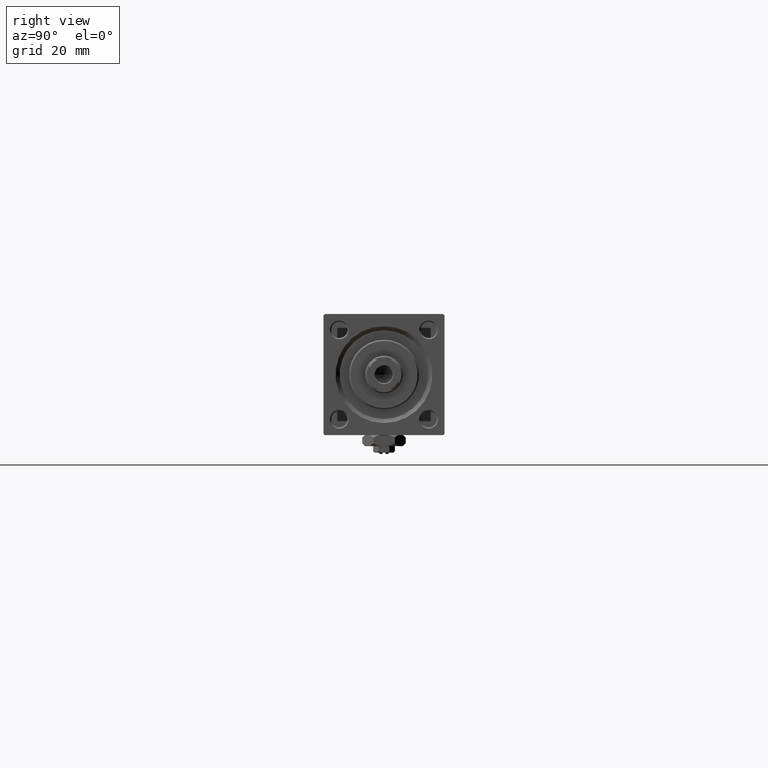
[diagram: clean part render]
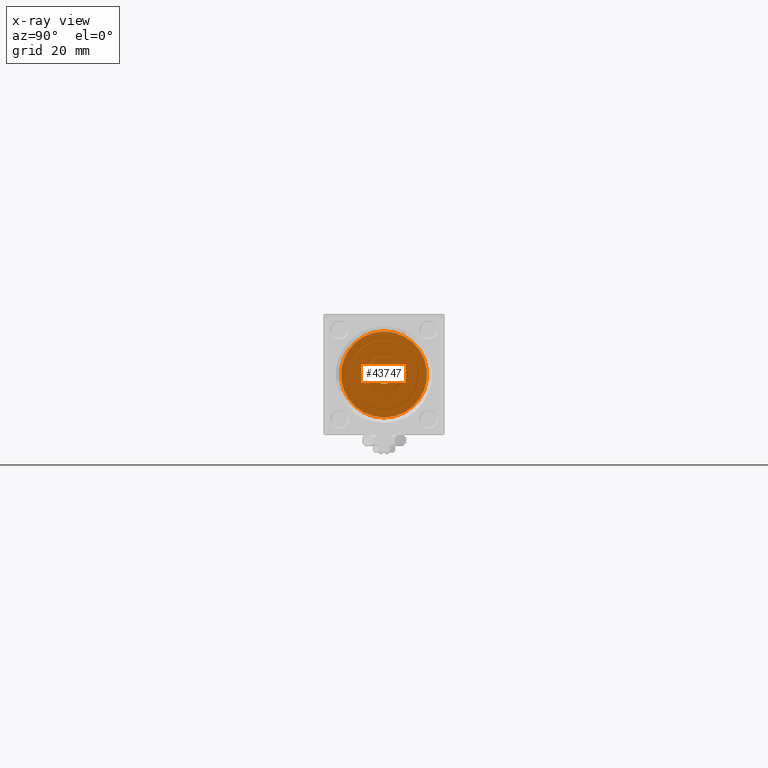
[diagram: x-ray — body ghosted, one internal face saturated and labeled with its STEP entity id]
A machine part, right view, then the same camera in x-ray: the body is ghosted and one INTERNAL B-rep face — a face not visible from any outside direction — is saturated and labeled: STEP entity #43747.
In plain terms, the highlighted planar face has unit normal (-1, 0, 0).
Its self-contained STEP definition (entity closure, byte-faithful):
#2103 = DIRECTION ( 'NONE',  ( -0.000000000000000000, 0.000000000000000000, 1.000000000000000000 ) ) ;
#2362 = FACE_BOUND ( 'NONE', #31201, .T. ) ;
#3021 = CARTESIAN_POINT ( 'NONE',  ( 25.00000000000000000, -2.602085213965210642E-15, 0.000000000000000000 ) ) ;
#4451 = DIRECTION ( 'NONE',  ( 0.000000000000000000, 0.000000000000000000, -1.000000000000000000 ) ) ;
#4991 = ORIENTED_EDGE ( 'NONE', *, *, #11990, .T. ) ;
#5666 = EDGE_CURVE ( 'NONE', #27866, #26895, #41751, .T. ) ;
#6062 = DIRECTION ( 'NONE',  ( -1.000000000000000000, 0.000000000000000000, -0.000000000000000000 ) ) ;
#8858 = AXIS2_PLACEMENT_3D ( 'NONE', #3021, #30739, #10929 ) ;
#9679 = CIRCLE ( 'NONE', #25700, 3.500000000000000000 ) ;
#10929 = DIRECTION ( 'NONE',  ( 0.000000000000000000, 0.000000000000000000, -1.000000000000000000 ) ) ;
#11824 = CARTESIAN_POINT ( 'NONE',  ( 25.00000000000000000, -2.602085213965210642E-15, 0.000000000000000000 ) ) ;
#11990 = EDGE_CURVE ( 'NONE', #26895, #27866, #40150, .T. ) ;
#14008 = AXIS2_PLACEMENT_3D ( 'NONE', #11824, #40070, #4451 ) ;
#16417 = ORIENTED_EDGE ( 'NONE', *, *, #45022, .T. ) ;
#17623 = ORIENTED_EDGE ( 'NONE', *, *, #32932, .T. ) ;
#17921 = FACE_OUTER_BOUND ( 'NONE', #30738, .T. ) ;
#19282 = VERTEX_POINT ( 'NONE', #21018 ) ;
#21018 = CARTESIAN_POINT ( 'NONE',  ( 24.99999999999999289, 4.286263797015736595E-16, -3.500000000000000000 ) ) ;
#21251 = CARTESIAN_POINT ( 'NONE',  ( 24.99999999999999289, 0.000000000000000000, 0.000000000000000000 ) ) ;
#21541 = CARTESIAN_POINT ( 'NONE',  ( 25.00000000000000000, -2.602085213965210642E-15, 16.00000000000000000 ) ) ;
#21882 = PLANE ( 'NONE',  #52039 ) ;
#24433 = DIRECTION ( 'NONE',  ( -1.000000000000000000, 0.000000000000000000, -0.000000000000000000 ) ) ;
#25700 = AXIS2_PLACEMENT_3D ( 'NONE', #36480, #39669, #52052 ) ;
#26895 = VERTEX_POINT ( 'NONE', #44992 ) ;
#27866 = VERTEX_POINT ( 'NONE', #21541 ) ;
#30738 = EDGE_LOOP ( 'NONE', ( #35403, #4991 ) ) ;
#30739 = DIRECTION ( 'NONE',  ( 1.000000000000000000, 0.000000000000000000, 0.000000000000000000 ) ) ;
#31201 = EDGE_LOOP ( 'NONE', ( #17623, #16417 ) ) ;
#32932 = EDGE_CURVE ( 'NONE', #41638, #19282, #9679, .T. ) ;
#35403 = ORIENTED_EDGE ( 'NONE', *, *, #5666, .T. ) ;
#36480 = CARTESIAN_POINT ( 'NONE',  ( 24.99999999999999289, 0.000000000000000000, 0.000000000000000000 ) ) ;
#36904 = CARTESIAN_POINT ( 'NONE',  ( 24.99999999999999289, 0.000000000000000000, 3.500000000000000000 ) ) ;
#37792 = CIRCLE ( 'NONE', #42002, 3.500000000000000000 ) ;
#39669 = DIRECTION ( 'NONE',  ( -1.000000000000000000, 0.000000000000000000, -0.000000000000000000 ) ) ;
#40070 = DIRECTION ( 'NONE',  ( 1.000000000000000000, 0.000000000000000000, 0.000000000000000000 ) ) ;
#40150 = CIRCLE ( 'NONE', #14008, 16.00000000000000000 ) ;
#40542 = DIRECTION ( 'NONE',  ( 0.000000000000000000, 0.000000000000000000, 1.000000000000000000 ) ) ;
#41638 = VERTEX_POINT ( 'NONE', #36904 ) ;
#41751 = CIRCLE ( 'NONE', #8858, 16.00000000000000000 ) ;
#42002 = AXIS2_PLACEMENT_3D ( 'NONE', #21251, #24433, #40542 ) ;
#43747 = ADVANCED_FACE ( 'NONE', ( #2362, #17921 ), #21882, .F. ) ;
#44992 = CARTESIAN_POINT ( 'NONE',  ( 25.00000000000000000, -6.426503353294456087E-16, -16.00000000000000000 ) ) ;
#45022 = EDGE_CURVE ( 'NONE', #19282, #41638, #37792, .T. ) ;
#46179 = CARTESIAN_POINT ( 'NONE',  ( 25.00000000000000000, 0.000000000000000000, 0.000000000000000000 ) ) ;
#52039 = AXIS2_PLACEMENT_3D ( 'NONE', #46179, #6062, #2103 ) ;
#52052 = DIRECTION ( 'NONE',  ( 0.000000000000000000, 0.000000000000000000, 1.000000000000000000 ) ) ;